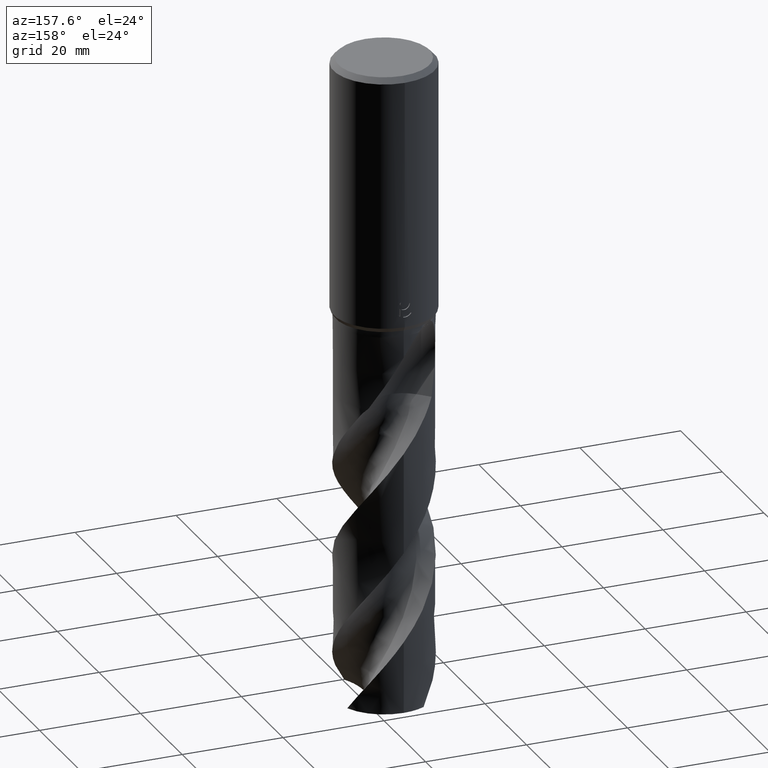
[diagram: clean part render]
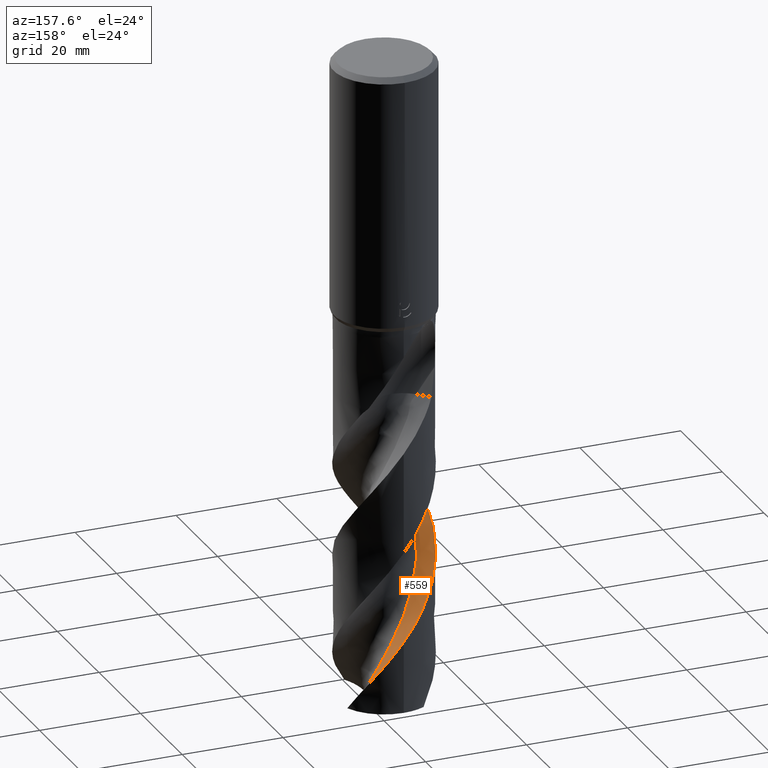
[diagram: same view with one face highlighted and labeled with its STEP entity id]
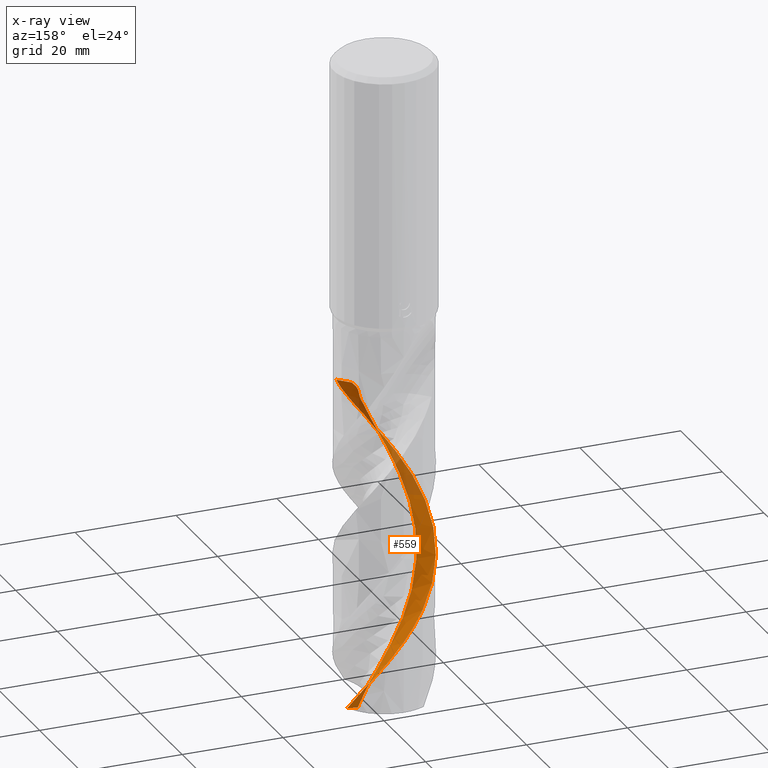
[diagram: x-ray of the same camera — body ghosted, the highlighted face saturated]
A machine part, auxiliary view. The second image highlights one B-rep face of the part: STEP entity #559.
The next image is the same camera in x-ray: the body ghosted, the highlighted face saturated — about 16% of this face is hidden behind the body in this view.
In plain terms, the highlighted face is a freeform B-spline surface patch.
Its self-contained STEP definition (entity closure, byte-faithful):
#319=VERTEX_POINT('',#833);
#355=EDGE_CURVE('',#475,#403,#871,.T.);
#403=VERTEX_POINT('',#924);
#409=EDGE_CURVE('',#537,#403,#930,.T.);
#433=VERTEX_POINT('',#958);
#437=VERTEX_POINT('',#962);
#439=EDGE_CURVE('',#433,#437,#964,.T.);
#475=VERTEX_POINT('',#1002);
#537=VERTEX_POINT('',#1073);
#559=ADVANCED_FACE('',(#1097),#1098,.F.);
#567=EDGE_CURVE('',#537,#319,#1107,.T.);
#569=EDGE_CURVE('',#437,#475,#1109,.T.);
#623=EDGE_CURVE('',#319,#433,#1166,.T.);
#833=CARTESIAN_POINT('',(6.60317748529335,-6.82982492497779,-66.369));
#871=B_SPLINE_CURVE_WITH_KNOTS('',3,(#2471,#2472,#2473,#2474,#2475,#2476),.UNSPECIFIED.,.F.,.F.,(4,2,4),(0.0,4.25885303102004,8.39919898855953),.UNSPECIFIED.);
#924=CARTESIAN_POINT('',(5.80974201715728,1.44728957553705,-128.820801377127));
#930=B_SPLINE_CURVE_WITH_KNOTS('',3,(#3488,#3489,#3490,#3491,#3492,#3493,#3494,#3495,#3496,#3497,#3498,#3499,#3500,#3501,#3502,#3503,#3504,#3505,#3506,#3507,#3508,#3509,#3510,#3511,#3512,#3513,#3514,#3515,#3516,#3517,#3518,#3519,#3520,#3521,#3522,#3523,#3524,#3525,#3526,#3527,#3528,#3529,#3530,#3531,#3532,#3533,#3534,#3535,#3536,#3537,#3538,#3539,#3540,#3541,#3542,#3543,#3544,#3545,#3546,#3547,#3548),.UNSPECIFIED.,.F.,.F.,(4,1,2,2,2,2,2,2,1,2,2,1,2,1,2,1,2,1,2,1,2,1,2,1,2,1,2,1,2,1,2,1,2,2,2,2,4),(0.0,1.50514224946987,3.01028449893974,4.51542674840961,6.02056899787949,7.52571124734936,9.03085349681923,10.5359957462891,12.041137995759,15.0514224946987,18.0617069936385,21.0719914925782,24.0822759915179,27.0925604904577,30.1028449893974,33.1131294883372,36.1234139872769,39.1336984862167,42.1439829851564,45.1542674840962,48.1645519830359,51.1748364819756,54.1851209809154,57.1954054798551,60.2056899787949,63.2159744777346,66.2262589766744,69.2365434756141,72.2468279745538,75.2571124734936,78.2673969724333,81.2776814713731,84.2879659703128,87.2982504692526,90.3085349681923,93.318819467132,96.3291039660718),.UNSPECIFIED.);
#958=CARTESIAN_POINT('',(-4.1338880547068E-012,-9.49993127510532,-75.6259285171652));
#962=CARTESIAN_POINT('',(1.27417946126216E-014,9.49998125251192,-113.380002318758));
#964=B_SPLINE_CURVE_WITH_KNOTS('',3,(#3954,#3955,#3956,#3957,#3958,#3959,#3960,#3961,#3962,#3963,#3964,#3965,#3966,#3967,#3968,#3969,#3970,#3971,#3972,#3973,#3974,#3975,#3976,#3977,#3978,#3979,#3980,#3981,#3982,#3983,#3984,#3985,#3986,#3987,#3988,#3989,#3990,#3991,#3992,#3993,#3994,#3995,#3996,#3997,#3998,#3999,#4000,#4001,#4002,#4003,#4004,#4005,#4006,#4007,#4008,#4009,#4010,#4011,#4012,#4013,#4014,#4015,#4016,#4017,#4018,#4019,#4020,#4021,#4022,#4023,#4024,#4025,#4026,#4027,#4028,#4029,#4030,#4031,#4032,#4033,#4034,#4035,#4036,#4037,#4038,#4039,#4040,#4041,#4042,#4043,#4044,#4045,#4046,#4047),.UNSPECIFIED.,.F.,.F.,(4,2,2,2,2,2,2,2,2,2,2,2,2,2,2,2,2,2,2,2,2,2,2,2,2,2,2,2,2,2,2,2,2,2,2,2,2,2,2,2,2,2,2,2,2,2,4),(0.0,0.251873119474417,1.49003797487971,1.88508295319793,2.13092462434853,2.35716562233721,3.13353898347718,4.18013330538902,4.83918963152517,5.93775065587762,6.81496857982327,8.02790787915014,9.75036210045493,13.2764124544649,14.4454629875948,15.6066051960238,17.9265473335705,19.0963699913995,21.4109945508094,23.7401067032691,26.0705935709527,28.3953475288639,29.5638755078165,30.7172768610607,33.0360554741393,34.205567762644,36.5191793595424,38.8491953685156,41.1763972234209,43.5015908754758,44.669614792135,45.8209936645345,48.1405530675708,49.3096707922411,51.6196713102826,53.9501576620426,56.2743511680703,58.6000247152023,59.6813820773217,60.6859263624276,64.4629977253642,65.888779279663,68.3922279306903,69.333198665928,70.9795006092645,73.4517762786799,75.9230377183362),.UNSPECIFIED.);
#1002=CARTESIAN_POINT('',(8.77829669865339,3.63201143588659,-127.542282774471));
#1073=CARTESIAN_POINT('',(4.47834294508706,-4.70499038491293,-66.369));
#1097=FACE_OUTER_BOUND('',#4417,.T.);
#1098=B_SPLINE_SURFACE_WITH_KNOTS('',3,3,((#4418,#4419,#4420,#4421,#4422,#4423,#4424,#4425,#4426,#4427,#4428,#4429,#4430,#4431,#4432,#4433,#4434,#4435,#4436,#4437,#4438,#4439,#4440,#4441,#4442,#4443,#4444,#4445,#4446,#4447,#4448,#4449,#4450,#4451,#4452,#4453,#4454,#4455,#4456,#4457,#4458,#4459,#4460,#4461,#4462,#4463,#4464,#4465,#4466,#4467,#4468,#4469,#4470,#4471,#4472,#4473,#4474,#4475,#4476,#4477,#4478),(#4479,#4480,#4481,#4482,#4483,#4484,#4485,#4486,#4487,#4488,#4489,#4490,#4491,#4492,#4493,#4494,#4495,#4496,#4497,#4498,#4499,#4500,#4501,#4502,#4503,#4504,#4505,#4506,#4507,#4508,#4509,#4510,#4511,#4512,#4513,#4514,#4515,#4516,#4517,#4518,#4519,#4520,#4521,#4522,#4523,#4524,#4525,#4526,#4527,#4528,#4529,#4530,#4531,#4532,#4533,#4534,#4535,#4536,#4537,#4538,#4539),(#4540,#4541,#4542,#4543,#4544,#4545,#4546,#4547,#4548,#4549,#4550,#4551,#4552,#4553,#4554,#4555,#4556,#4557,#4558,#4559,#4560,#4561,#4562,#4563,#4564,#4565,#4566,#4567,#4568,#4569,#4570,#4571,#4572,#4573,#4574,#4575,#4576,#4577,#4578,#4579,#4580,#4581,#4582,#4583,#4584,#4585,#4586,#4587,#4588,#4589,#4590,#4591,#4592,#4593,#4594,#4595,#4596,#4597,#4598,#4599,#4600),(#4601,#4602,#4603,#4604,#4605,#4606,#4607,#4608,#4609,#4610,#4611,#4612,#4613,#4614,#4615,#4616,#4617,#4618,#4619,#4620,#4621,#4622,#4623,#4624,#4625,#4626,#4627,#4628,#4629,#4630,#4631,#4632,#4633,#4634,#4635,#4636,#4637,#4638,#4639,#4640,#4641,#4642,#4643,#4644,#4645,#4646,#4647,#4648,#4649,#4650,#4651,#4652,#4653,#4654,#4655,#4656,#4657,#4658,#4659,#4660,#4661)),.UNSPECIFIED.,.F.,.F.,.F.,(4,4),(4,1,2,2,2,2,2,2,1,2,2,1,2,1,2,1,2,1,2,1,2,1,2,1,2,1,2,1,2,1,2,1,2,2,2,2,4),(-2.88369317574116E-015,12.66666667),(0.0,1.50514224946987,3.01028449893974,4.51542674840961,6.02056899787949,7.52571124734936,9.03085349681923,10.5359957462891,12.041137995759,15.0514224946987,18.0617069936385,21.0719914925782,24.0822759915179,27.0925604904577,30.1028449893974,33.1131294883372,36.1234139872769,39.1336984862167,42.1439829851564,45.1542674840962,48.1645519830359,51.1748364819756,54.1851209809154,57.1954054798551,60.2056899787949,63.2159744777346,66.2262589766744,69.2365434756141,72.2468279745538,75.2571124734936,78.2673969724333,81.2776814713731,84.2879659703128,87.2982504692526,90.3085349681923,93.318819467132,96.3291039660718),.UNSPECIFIED.);
#1107=LINE('',#4672,#4673);
#1109=B_SPLINE_CURVE_WITH_KNOTS('',3,(#4676,#4677,#4678,#4679,#4680,#4681,#4682,#4683,#4684,#4685,#4686,#4687,#4688,#4689,#4690,#4691,#4692,#4693,#4694,#4695,#4696,#4697,#4698,#4699,#4700,#4701,#4702,#4703,#4704,#4705,#4706,#4707,#4708,#4709,#4710,#4711,#4712,#4713,#4714,#4715,#4716,#4717,#4718,#4719,#4720,#4721,#4722,#4723,#4724,#4725,#4726,#4727,#4728,#4729,#4730,#4731,#4732,#4733,#4734,#4735,#4736,#4737,#4738,#4739,#4740,#4741,#4742,#4743,#4744,#4745,#4746,#4747,#4748,#4749,#4750,#4751,#4752,#4753,#4754,#4755,#4756,#4757,#4758,#4759,#4760,#4761,#4762,#4763,#4764,#4765,#4766,#4767,#4768,#4769),.UNSPECIFIED.,.F.,.F.,(4,2,2,2,2,2,2,2,2,2,2,2,2,2,2,2,2,2,2,2,2,2,2,2,2,2,2,2,2,2,2,2,2,2,2,2,2,2,2,2,2,2,2,2,2,2,4),(0.0,0.251873119474417,1.49003797487971,1.88508295319793,2.13092462434853,2.35716562233721,3.13353898347718,4.18013330538902,4.83918963152517,5.93775065587762,6.81496857982327,8.02790787915014,9.75036210045493,13.2764124544649,14.4454629875948,15.6066051960238,17.9265473335705,19.0963699913995,21.4109945508094,23.7401067032691,26.0705935709527,28.3953475288639,29.5638755078165,30.7172768610607,33.0360554741393,34.205567762644,36.5191793595424,38.8491953685156,41.1763972234209,43.5015908754758,44.669614792135,45.8209936645345,48.1405530675708,49.3096707922411,51.6196713102826,53.9501576620426,56.2743511680703,58.6000247152023,59.6813820773217,60.6859263624276,64.4629977253642,65.888779279663,68.3922279306903,69.333198665928,70.9795006092645,73.4517762786799,75.9230377183362),.UNSPECIFIED.);
#1166=B_SPLINE_CURVE_WITH_KNOTS('',3,(#5030,#5031,#5032,#5033,#5034,#5035,#5036,#5037,#5038,#5039,#5040,#5041,#5042,#5043,#5044,#5045,#5046,#5047,#5048,#5049,#5050,#5051,#5052,#5053,#5054,#5055,#5056,#5057,#5058,#5059,#5060,#5061,#5062,#5063,#5064,#5065,#5066,#5067,#5068,#5069,#5070,#5071,#5072,#5073,#5074,#5075,#5076,#5077,#5078,#5079,#5080,#5081,#5082,#5083,#5084,#5085,#5086,#5087,#5088,#5089,#5090,#5091,#5092,#5093,#5094,#5095,#5096,#5097,#5098,#5099,#5100,#5101,#5102,#5103,#5104,#5105,#5106,#5107,#5108,#5109,#5110,#5111,#5112,#5113,#5114,#5115,#5116,#5117,#5118,#5119,#5120,#5121,#5122,#5123),.UNSPECIFIED.,.F.,.F.,(4,2,2,2,2,2,2,2,2,2,2,2,2,2,2,2,2,2,2,2,2,2,2,2,2,2,2,2,2,2,2,2,2,2,2,2,2,2,2,2,2,2,2,2,2,2,4),(0.0,0.251873119474417,1.49003797487971,1.88508295319793,2.13092462434853,2.35716562233721,3.13353898347718,4.18013330538902,4.83918963152517,5.93775065587762,6.81496857982327,8.02790787915014,9.75036210045493,13.2764124544649,14.4454629875948,15.6066051960238,17.9265473335705,19.0963699913995,21.4109945508094,23.7401067032691,26.0705935709527,28.3953475288639,29.5638755078165,30.7172768610607,33.0360554741393,34.205567762644,36.5191793595424,38.8491953685156,41.1763972234209,43.5015908754758,44.669614792135,45.8209936645345,48.1405530675708,49.3096707922411,51.6196713102826,53.9501576620426,56.2743511680703,58.6000247152023,59.6813820773217,60.6859263624276,64.4629977253642,65.888779279663,68.3922279306903,69.333198665928,70.9795006092645,73.4517762786799,75.9230377183362),.UNSPECIFIED.);
#2471=CARTESIAN_POINT('',(11.5765998462698,6.81779553810075,-126.110049404806));
#2472=CARTESIAN_POINT('',(10.8039131995414,5.71366045002718,-126.556317712131));
#2473=CARTESIAN_POINT('',(9.92067903092733,4.69230082632986,-127.009142719511));
#2474=CARTESIAN_POINT('',(7.98080270049528,2.88890076310662,-127.915052170613));
#2475=CARTESIAN_POINT('',(6.93383319822024,2.10489541934979,-128.365941801069));
#2476=CARTESIAN_POINT('',(5.80974201712284,1.44728957562872,-128.820801377131));
#3488=CARTESIAN_POINT('',(4.47834294508706,-4.70499038491294,-66.369));
#3489=CARTESIAN_POINT('',(4.10124859374168,-4.68114855484236,-66.7050042010984));
#3490=CARTESIAN_POINT('',(3.48398326987125,-4.70393963179096,-67.374863723799));
#3491=CARTESIAN_POINT('',(3.14106399801101,-4.85226148457146,-68.0431642282418));
#3492=CARTESIAN_POINT('',(2.92263971606199,-5.07482759472613,-68.7167645355891));
#3493=CARTESIAN_POINT('',(2.8180123749376,-5.18723501483594,-69.0544199585459));
#3494=CARTESIAN_POINT('',(2.61175601801859,-5.41408162504191,-69.7332494511359));
#3495=CARTESIAN_POINT('',(2.47841625132045,-5.50296919945884,-70.0722916806471));
#3496=CARTESIAN_POINT('',(2.16756926318354,-5.62990795372111,-70.7463214611539));
#3497=CARTESIAN_POINT('',(2.00225290854315,-5.67986901491655,-71.0826349325472));
#3498=CARTESIAN_POINT('',(1.65884399258006,-5.75448229154963,-71.7529823179208));
#3499=CARTESIAN_POINT('',(1.49027309541351,-5.7899627365465,-72.0884849730404));
#3500=CARTESIAN_POINT('',(1.15861432781505,-5.85802327307403,-72.7607671149256));
#3501=CARTESIAN_POINT('',(0.994288343902442,-5.88896538320017,-73.0973146535095));
#3502=CARTESIAN_POINT('',(0.668227835566666,-5.94506654928287,-73.771716415554));
#3503=CARTESIAN_POINT('',(0.171785827243109,-6.00272002712873,-74.7828538753643));
#3504=CARTESIAN_POINT('',(-0.334799575302398,-5.9844555014029,-75.7929612511772));
#3505=CARTESIAN_POINT('',(-1.00186192413668,-5.90725474412651,-77.1388784517394));
#3506=CARTESIAN_POINT('',(-1.33198612706097,-5.8399805266898,-77.8119303215312));
#3507=CARTESIAN_POINT('',(-1.97499111387502,-5.66329663055837,-79.1587677915497));
#3508=CARTESIAN_POINT('',(-2.60451099638644,-5.41687276472888,-80.5058899017373));
#3509=CARTESIAN_POINT('',(-3.18322714974284,-5.07066619334075,-81.8521002179992));
#3510=CARTESIAN_POINT('',(-3.73249628587146,-4.69399020889115,-83.1987163081285));
#3511=CARTESIAN_POINT('',(-4.2460169022568,-4.25529826789114,-84.54575706103));
#3512=CARTESIAN_POINT('',(-4.67817146157823,-3.73757906029777,-85.892010220247));
#3513=CARTESIAN_POINT('',(-5.07202039637853,-3.2001228295157,-87.2386478102458));
#3514=CARTESIAN_POINT('',(-5.41176309487789,-2.61617667554467,-88.5856827548969));
#3515=CARTESIAN_POINT('',(-5.648958146282,-1.98491056482271,-89.9319284973923));
#3516=CARTESIAN_POINT('',(-5.84365638445377,-1.34776864053365,-91.2785829774975));
#3517=CARTESIAN_POINT('',(-5.97189317665219,-0.684521892952545,-92.6256313742078));
#3518=CARTESIAN_POINT('',(-5.98763984473996,-0.0103723409502154,-93.9718746468437));
#3519=CARTESIAN_POINT('',(-5.96132336298668,0.655307656145204,-95.318516227455));
#3520=CARTESIAN_POINT('',(-5.86361762927867,1.32372279424485,-96.6655593537789));
#3521=CARTESIAN_POINT('',(-5.65602105761808,1.96533852595325,-98.011802048606));
#3522=CARTESIAN_POINT('',(-5.41146224801823,2.58507581596444,-99.3584396267693));
#3523=CARTESIAN_POINT('',(-5.09865031281403,3.18383590034309,-100.705479135477));
#3524=CARTESIAN_POINT('',(-4.69099542158007,3.72104935899889,-102.051725248662));
#3525=CARTESIAN_POINT('',(-4.25567136147994,4.22542012019542,-103.398371915021));
#3526=CARTESIAN_POINT('',(-3.76286089111361,4.68748226292924,-104.745416192179));
#3527=CARTESIAN_POINT('',(-3.20087961276401,5.06019537291509,-106.091665040934));
#3528=CARTESIAN_POINT('',(-2.62363296783074,5.39280291782176,-107.438317169992));
#3529=CARTESIAN_POINT('',(-2.00602987139938,5.66648272083516,-108.785360184087));
#3530=CARTESIAN_POINT('',(-1.35256994175408,5.83296285118964,-110.131591637003));
#3531=CARTESIAN_POINT('',(-0.697937836539632,5.95655175254549,-111.478218491541));
#3532=CARTESIAN_POINT('',(-0.0246218219708053,6.01115940341247,-112.825269978172));
#3533=CARTESIAN_POINT('',(0.647264957499726,5.95254345564659,-114.171544933531));
#3534=CARTESIAN_POINT('',(1.30612997215727,5.85291246412108,-115.518213390798));
#3535=CARTESIAN_POINT('',(1.9597769550673,5.68230364520769,-116.865214215956));
#3536=CARTESIAN_POINT('',(2.57467779526967,5.40608587646876,-118.211384645746));
#3537=CARTESIAN_POINT('',(3.1638540866682,5.09582095844164,-119.557991514211));
#3538=CARTESIAN_POINT('',(3.7246557026519,4.71897580011305,-120.905176826813));
#3539=CARTESIAN_POINT('',(4.21324241225079,4.2527410460799,-122.251554594952));
#3540=CARTESIAN_POINT('',(4.66566892879684,3.76208963768577,-123.598142909004));
#3541=CARTESIAN_POINT('',(4.86901066352007,3.49361563362283,-124.271352506575));
#3542=CARTESIAN_POINT('',(5.23043551459396,2.93024916739617,-125.618077603003));
#3543=CARTESIAN_POINT('',(5.38374384757543,2.62838545735763,-126.291892585177));
#3544=CARTESIAN_POINT('',(5.64278501191675,2.00941699111222,-127.638519248779));
#3545=CARTESIAN_POINT('',(5.74713160560467,1.69061686432361,-128.310905326276));
#3546=CARTESIAN_POINT('',(5.91338165236704,1.04888915012452,-129.655919057332));
#3547=CARTESIAN_POINT('',(5.95187293022649,0.708350520641794,-130.329341487549));
#3548=CARTESIAN_POINT('',(5.95035302180734,0.36192422380625,-131.001824465228));
#3954=CARTESIAN_POINT('',(6.60317748529335,-6.82982492497779,-66.369));
#3955=CARTESIAN_POINT('',(6.56732896395903,-6.86448393908082,-66.436546522774));
#3956=CARTESIAN_POINT('',(6.53115245635342,-6.89891447658585,-66.504067563078));
#3957=CARTESIAN_POINT('',(6.3149115299211,-7.10147783387571,-66.903078365389));
#3958=CARTESIAN_POINT('',(6.12978801977891,-7.26225138908425,-67.2251662843483));
#3959=CARTESIAN_POINT('',(5.86478478188207,-7.47392289208394,-67.6554609286801));
#3960=CARTESIAN_POINT('',(5.79982235722404,-7.52445502051112,-67.7588390478024));
#3961=CARTESIAN_POINT('',(5.69263840179053,-7.60559187503814,-67.9264725843445));
#3962=CARTESIAN_POINT('',(5.65119667314177,-7.63643642647113,-67.9905997013739));
#3963=CARTESIAN_POINT('',(5.57092280014327,-7.69516709525039,-68.1136881018543));
#3964=CARTESIAN_POINT('',(5.5322006993833,-7.72305285643811,-68.1725699294469));
#3965=CARTESIAN_POINT('',(5.35943519568297,-7.84549903454466,-68.4335023074185));
#3966=CARTESIAN_POINT('',(5.22357780849434,-7.93666342151522,-68.6347568913061));
#3967=CARTESIAN_POINT('',(4.89238725200132,-8.14639367558284,-69.1219739903466));
#3968=CARTESIAN_POINT('',(4.7004642307511,-8.25854854610104,-69.401312545323));
#3969=CARTESIAN_POINT('',(4.38139138210525,-8.4303954783629,-69.8613224756083));
#3970=CARTESIAN_POINT('',(4.25674872801167,-8.49400948220576,-70.0396320928485));
#3971=CARTESIAN_POINT('',(3.92093419370303,-8.65616358956185,-70.5145064653467));
#3972=CARTESIAN_POINT('',(3.70713196104935,-8.74987848372962,-70.8110692137834));
#3973=CARTESIAN_POINT('',(3.31616233855425,-8.90429592797499,-71.343477523361));
#3974=CARTESIAN_POINT('',(3.1408016110143,-8.96765543348787,-71.5785596485852));
#3975=CARTESIAN_POINT('',(2.71796768364287,-9.1064788490791,-72.1400093546992));
#3976=CARTESIAN_POINT('',(2.46950326296371,-9.17696974893974,-72.4655149234991));
#3977=CARTESIAN_POINT('',(1.86220258410466,-9.32282960169812,-73.2544413810069));
#3978=CARTESIAN_POINT('',(1.50154116498336,-9.38764188352505,-73.7180489701718));
#3979=CARTESIAN_POINT('',(0.394981797080532,-9.52120682516674,-75.1295690590272));
#3980=CARTESIAN_POINT('',(-0.356824426973428,-9.52277614827244,-76.0740024630786));
#3981=CARTESIAN_POINT('',(-1.34820719978957,-9.40706323295377,-77.3357973576078));
#3982=CARTESIAN_POINT('',(-1.59380662861743,-9.36857866404848,-77.6498581064332));
#3983=CARTESIAN_POINT('',(-2.07972523618513,-9.27277800634745,-78.2761645391085));
#3984=CARTESIAN_POINT('',(-2.31982955284709,-9.2156388194545,-78.5881104618288));
#3985=CARTESIAN_POINT('',(-3.03200282022896,-9.0165746045621,-79.5241445965765));
#3986=CARTESIAN_POINT('',(-3.49569369237579,-8.84714662559732,-80.1475239355353));
#3987=CARTESIAN_POINT('',(-4.17037883993012,-8.53923743204956,-81.0857117092812));
#3988=CARTESIAN_POINT('',(-4.39245374559397,-8.42716132855404,-81.4000032530859));
#3989=CARTESIAN_POINT('',(-5.04020717935877,-8.06767281718645,-82.3364985612037));
#3990=CARTESIAN_POINT('',(-5.45111385114966,-7.79589843251718,-82.9574649867071));
#3991=CARTESIAN_POINT('',(-6.22930362330623,-7.18954231603338,-84.2062108835002));
#3992=CARTESIAN_POINT('',(-6.59538308864851,-6.85528955669688,-84.8316866618132));
#3993=CARTESIAN_POINT('',(-7.27249042120494,-6.13231416686873,-86.0842211341981));
#3994=CARTESIAN_POINT('',(-7.58223420582164,-5.74489912783116,-86.7091397145258));
#3995=CARTESIAN_POINT('',(-8.1377029167724,-4.92653626177327,-87.961020938963));
#3996=CARTESIAN_POINT('',(-8.38287588817914,-4.49673531200497,-88.5855422657487));
#3997=CARTESIAN_POINT('',(-8.69942976001206,-3.82500557377009,-89.5246875121231));
#3998=CARTESIAN_POINT('',(-8.79647912253519,-3.59621201265578,-89.8386361038093));
#3999=CARTESIAN_POINT('',(-8.9712983328452,-3.13448875576243,-90.4627657061389));
#4000=CARTESIAN_POINT('',(-9.04919647870367,-2.90193066438135,-90.7725807621672));
#4001=CARTESIAN_POINT('',(-9.25632911188926,-2.19369668308835,-91.7063069344376));
#4002=CARTESIAN_POINT('',(-9.35766391004626,-1.71061077868816,-92.3294860198512));
#4003=CARTESIAN_POINT('',(-9.45303068946396,-0.975269793209317,-93.2674757844495));
#4004=CARTESIAN_POINT('',(-9.47532037539241,-0.727528649373846,-93.5817598452777));
#4005=CARTESIAN_POINT('',(-9.51267928303701,0.0122041841635203,-94.5181385722579));
#4006=CARTESIAN_POINT('',(-9.49927820838909,0.504555485150675,-95.1391222030793));
#4007=CARTESIAN_POINT('',(-9.39609472123268,1.48584570221717,-96.388123838004));
#4008=CARTESIAN_POINT('',(-9.3058910167287,1.97359676838131,-97.0139167213018));
#4009=CARTESIAN_POINT('',(-9.05026968921457,2.93031556297424,-98.266044268255));
#4010=CARTESIAN_POINT('',(-8.88542390177284,3.39751275616411,-98.8902744218214));
#4011=CARTESIAN_POINT('',(-8.48479611656557,4.30135969956399,-100.141667395396));
#4012=CARTESIAN_POINT('',(-8.24957200941492,4.7369092323875,-100.766401149436));
#4013=CARTESIAN_POINT('',(-7.84675166845045,5.36092487007266,-101.705710187293));
#4014=CARTESIAN_POINT('',(-7.70391556159159,5.56423841439905,-102.019582977183));
#4015=CARTESIAN_POINT('',(-7.40474481344827,5.95643247914748,-102.643163292462));
#4016=CARTESIAN_POINT('',(-7.24881321239238,6.14524046039473,-102.952532536493));
#4017=CARTESIAN_POINT('',(-6.75740719425368,6.69551557252032,-103.886133615673));
#4018=CARTESIAN_POINT('',(-6.40082279977045,7.03719469259367,-104.50960516961));
#4019=CARTESIAN_POINT('',(-5.82696920605054,7.50717406885272,-105.447864741232));
#4020=CARTESIAN_POINT('',(-5.62852014054174,7.65709115712674,-105.762096246245));
#4021=CARTESIAN_POINT('',(-5.02103316297714,8.07960962656154,-106.697574726252));
#4022=CARTESIAN_POINT('',(-4.59668522202638,8.32832486419646,-107.317810445428));
#4023=CARTESIAN_POINT('',(-3.70980003626753,8.75969285898945,-108.566195409821));
#4024=CARTESIAN_POINT('',(-3.24797913384517,8.94124356565065,-109.192181840475));
#4025=CARTESIAN_POINT('',(-2.30116492914014,9.23030614247163,-110.443831731749));
#4026=CARTESIAN_POINT('',(-1.81802705194892,9.33747188172765,-111.067430289815));
#4027=CARTESIAN_POINT('',(-0.83946637530835,9.47571855063603,-112.318392358247));
#4028=CARTESIAN_POINT('',(-0.345233044315785,9.5065797490061,-112.943345611922));
#4029=CARTESIAN_POINT('',(0.379223255067798,9.49519503817697,-113.859645236233));
#4030=CARTESIAN_POINT('',(0.608975566000796,9.48323351858148,-114.150306776725));
#4031=CARTESIAN_POINT('',(1.05093319125585,9.44409198646768,-114.711218465786));
#4032=CARTESIAN_POINT('',(1.26301702200371,9.41807245751972,-114.981189993123));
#4033=CARTESIAN_POINT('',(2.26734642350548,9.26033275358307,-116.267489277209));
#4034=CARTESIAN_POINT('',(3.04199820874608,9.03558036823438,-117.280418017207));
#4035=CARTESIAN_POINT('',(4.05754445977954,8.59523831014453,-118.679638745028));
#4036=CARTESIAN_POINT('',(4.32978700719178,8.46136034949678,-119.062672390087));
#4037=CARTESIAN_POINT('',(5.0609415840037,8.05729310584805,-120.119967309998));
#4038=CARTESIAN_POINT('',(5.5044231746928,7.76109801673638,-120.793101536775));
#4039=CARTESIAN_POINT('',(6.07730718881284,7.30453566954457,-121.719821208893));
#4040=CARTESIAN_POINT('',(6.22985784314959,7.17487345916158,-121.972879628076));
#4041=CARTESIAN_POINT('',(6.63779914475541,6.80530525401712,-122.668833055765));
#4042=CARTESIAN_POINT('',(6.88414073868035,6.55599898177118,-123.111167562962));
#4043=CARTESIAN_POINT('',(7.46452414931052,5.89977451662334,-124.21920845152));
#4044=CARTESIAN_POINT('',(7.77954681174378,5.4776779865413,-124.882932302769));
#4045=CARTESIAN_POINT('',(8.33632943933207,4.58603564602007,-126.213228692416));
#4046=CARTESIAN_POINT('',(8.57727900842124,4.11785367436553,-126.877483343065));
#4047=CARTESIAN_POINT('',(8.77829669865342,3.63201143588658,-127.542282774471));
#4417=EDGE_LOOP('',(#6030,#6031,#6032,#6033,#6034,#6035));
#4418=CARTESIAN_POINT('',(4.47834294515778,-4.70499038484222,-66.369));
#4419=CARTESIAN_POINT('',(4.10124859381685,-4.68114855478056,-66.7050042010973));
#4420=CARTESIAN_POINT('',(3.48398326994195,-4.70393963171554,-67.3748637238006));
#4421=CARTESIAN_POINT('',(3.14106399808353,-4.85226148450762,-68.0431642282394));
#4422=CARTESIAN_POINT('',(2.92263971614342,-5.07482759466229,-68.7167645355911));
#4423=CARTESIAN_POINT('',(2.81801237502049,-5.18723501477998,-69.0544199585481));
#4424=CARTESIAN_POINT('',(2.61175601810147,-5.41408162498595,-69.7332494511336));
#4425=CARTESIAN_POINT('',(2.47841625139925,-5.50296919940635,-70.0722916806427));
#4426=CARTESIAN_POINT('',(2.16756926328016,-5.62990795367754,-70.7463214611583));
#4427=CARTESIAN_POINT('',(2.00225290863002,-5.67986901488026,-71.0826349325427));
#4428=CARTESIAN_POINT('',(1.65884399267584,-5.75448229150443,-71.7529823179252));
#4429=CARTESIAN_POINT('',(1.49027309551228,-5.7899627365088,-72.0884849730404));
#4430=CARTESIAN_POINT('',(1.15861432790491,-5.85802327304524,-72.7607671149255));
#4431=CARTESIAN_POINT('',(0.994288343990304,-5.88896538317496,-73.0973146535094));
#4432=CARTESIAN_POINT('',(0.668227835672353,-5.94506654925767,-73.771716415554));
#4433=CARTESIAN_POINT('',(0.171785827338652,-6.0027200271182,-74.7828538753598));
#4434=CARTESIAN_POINT('',(-0.334799575220219,-5.98445550139382,-75.7929612511949));
#4435=CARTESIAN_POINT('',(-1.00186192401886,-5.90725474413525,-77.1388784517215));
#4436=CARTESIAN_POINT('',(-1.3319861269267,-5.83998052669746,-77.811930321549));
#4437=CARTESIAN_POINT('',(-1.97499111381204,-5.66329663058386,-79.1587677915318));
#4438=CARTESIAN_POINT('',(-2.60451099629064,-5.41687276476215,-80.5058899017461));
#4439=CARTESIAN_POINT('',(-3.18322714961955,-5.07066619338,-81.8521002179992));
#4440=CARTESIAN_POINT('',(-3.73249628581946,-4.69399020894823,-83.1987163081284));
#4441=CARTESIAN_POINT('',(-4.24601690215061,-4.25529826795416,-84.5457570610299));
#4442=CARTESIAN_POINT('',(-4.67817146152921,-3.73757906036323,-85.8920102202469));
#4443=CARTESIAN_POINT('',(-5.07202039629385,-3.20012282959899,-87.2386478102457));
#4444=CARTESIAN_POINT('',(-5.41176309483259,-2.61617667563482,-88.5856827549147));
#4445=CARTESIAN_POINT('',(-5.64895814624343,-1.98491056489715,-89.9319284973566));
#4446=CARTESIAN_POINT('',(-5.84365638441519,-1.34776864064374,-91.2785829775331));
#4447=CARTESIAN_POINT('',(-5.97189317663374,-0.68452189303351,-92.62563137419));
#4448=CARTESIAN_POINT('',(-5.98763984472507,-0.0103723410678658,-93.9718746468437));
#4449=CARTESIAN_POINT('',(-5.96132336298962,0.655307656063203,-95.318516227455));
#4450=CARTESIAN_POINT('',(-5.86361762928517,1.32372279413512,-96.6655593537788));
#4451=CARTESIAN_POINT('',(-5.65602105764537,1.96533852585704,-98.0118020486059));
#4452=CARTESIAN_POINT('',(-5.41146224804552,2.58507581586823,-99.3584396267693));
#4453=CARTESIAN_POINT('',(-5.09865031286209,3.18383590025153,-100.705479135441));
#4454=CARTESIAN_POINT('',(-4.69099542162865,3.72104935891707,-102.051725248734));
#4455=CARTESIAN_POINT('',(-4.25567136154635,4.2254201201136,-103.39837191495));
#4456=CARTESIAN_POINT('',(-3.76286089118052,4.68748226284382,-104.745416192214));
#4457=CARTESIAN_POINT('',(-3.20087961284528,5.06019537288355,-106.091665040934));
#4458=CARTESIAN_POINT('',(-2.62363296791201,5.39280291773675,-107.438317169992));
#4459=CARTESIAN_POINT('',(-2.00602987149943,5.66648272080405,-108.785360184087));
#4460=CARTESIAN_POINT('',(-1.3525699418322,5.83296285116143,-110.131591637003));
#4461=CARTESIAN_POINT('',(-0.697937836653399,5.95655175251729,-111.478218491541));
#4462=CARTESIAN_POINT('',(-0.0246218220536914,6.0111594033961,-112.825269978172));
#4463=CARTESIAN_POINT('',(0.647264957382023,5.95254345566053,-114.171544933531));
#4464=CARTESIAN_POINT('',(1.30612997207522,5.85291246411719,-115.518213390798));
#4465=CARTESIAN_POINT('',(1.9597769549772,5.68230364523411,-116.865214215955));
#4466=CARTESIAN_POINT('',(2.57467779514139,5.40608587650645,-118.211384645746));
#4467=CARTESIAN_POINT('',(3.16385408661122,5.09582095847933,-119.557991514211));
#4468=CARTESIAN_POINT('',(3.72465570254788,4.71897580017092,-120.905176826813));
#4469=CARTESIAN_POINT('',(4.21324241217576,4.25274104613711,-122.251554594952));
#4470=CARTESIAN_POINT('',(4.6656689287218,3.76208963776079,-123.598142909004));
#4471=CARTESIAN_POINT('',(4.86901066343936,3.49361563368277,-124.271352506503));
#4472=CARTESIAN_POINT('',(5.2304355145489,2.93024916749176,-125.618077603074));
#4473=CARTESIAN_POINT('',(5.3837438475175,2.62838545742697,-126.291892585177));
#4474=CARTESIAN_POINT('',(5.64278501187665,2.00941699121721,-127.638519248779));
#4475=CARTESIAN_POINT('',(5.747131605571,1.69061686441778,-128.310905326276));
#4476=CARTESIAN_POINT('',(5.91338165233337,1.04888915021869,-129.655919057332));
#4477=CARTESIAN_POINT('',(5.9518729301909,0.708350520722385,-130.329341487549));
#4478=CARTESIAN_POINT('',(5.95035302178957,0.361924223904666,-131.001824465228));
#4479=CARTESIAN_POINT('',(7.46390491091311,-7.69055235061631,-66.3690000000656));
#4480=CARTESIAN_POINT('',(7.08860567133127,-7.66491559694269,-66.7049552358725));
#4481=CARTESIAN_POINT('',(6.42782481965024,-7.73236900208643,-67.3721626932194));
#4482=CARTESIAN_POINT('',(5.93965111511087,-8.0165869605962,-68.0360211468292));
#4483=CARTESIAN_POINT('',(5.51507853930814,-8.41013892394363,-68.709669619846));
#4484=CARTESIAN_POINT('',(5.29943349639861,-8.6063349547383,-69.0481744202053));
#4485=CARTESIAN_POINT('',(4.85546227287914,-8.99367783939346,-69.7314061793183));
#4486=CARTESIAN_POINT('',(4.61019062507241,-9.14944009674304,-70.0723147600669));
#4487=CARTESIAN_POINT('',(4.0914045587156,-9.39023608621055,-70.7468920487283));
#4488=CARTESIAN_POINT('',(3.8235393638024,-9.49068729076102,-71.0829352501033));
#4489=CARTESIAN_POINT('',(3.27791330010175,-9.65551147139177,-71.7509334304314));
#4490=CARTESIAN_POINT('',(3.0039311590325,-9.73325293806486,-72.0855190616107));
#4491=CARTESIAN_POINT('',(2.45276339362834,-9.87870290434581,-72.7569774953645));
#4492=CARTESIAN_POINT('',(2.17518506100646,-9.94447467653955,-73.0934357973907));
#4493=CARTESIAN_POINT('',(1.61586199975192,-10.0613349476225,-73.7686921236957));
#4494=CARTESIAN_POINT('',(0.768268902718699,-10.1944405893079,-74.780742433007));
#4495=CARTESIAN_POINT('',(-0.0913505675867288,-10.2062597533679,-75.7909478512527));
#4496=CARTESIAN_POINT('',(-1.23057189989338,-10.1298808227694,-77.1362915793297));
#4497=CARTESIAN_POINT('',(-1.79645872686738,-10.0433463088562,-77.8091291698865));
#4498=CARTESIAN_POINT('',(-2.90976380362488,-9.78763911332865,-79.1561201679268));
#4499=CARTESIAN_POINT('',(-3.99639753841525,-9.423750418478,-80.5036205540653));
#4500=CARTESIAN_POINT('',(-5.00708956522751,-8.88613175083757,-81.8494875618682));
#4501=CARTESIAN_POINT('',(-5.97517421088296,-8.27932623946357,-83.196082579519));
#4502=CARTESIAN_POINT('',(-6.88206860049608,-7.5785382902584,-84.5434364313074));
#4503=CARTESIAN_POINT('',(-7.65884156114295,-6.7375417554898,-85.8893817313388));
#4504=CARTESIAN_POINT('',(-8.37190693590694,-5.84491191058286,-87.2360133006295));
#4505=CARTESIAN_POINT('',(-8.99641567434074,-4.88396782754582,-88.5833578762478));
#4506=CARTESIAN_POINT('',(-9.45232374017063,-3.83385686860966,-89.9292904025075));
#4507=CARTESIAN_POINT('',(-9.83125790495739,-2.75603673849518,-91.2759509033921));
#4508=CARTESIAN_POINT('',(-10.1039837114259,-1.64289226448804,-92.6233216192334));
#4509=CARTESIAN_POINT('',(-10.1880369417908,-0.501153585761581,-93.969246240878));
#4510=CARTESIAN_POINT('',(-10.1902706580189,0.6413439177949,-95.3158878214893));
#4511=CARTESIAN_POINT('',(-10.0805459363491,1.78215520130159,-96.6632451936704));
#4512=CARTESIAN_POINT('',(-9.78318264620516,2.88768507501911,-98.0091720223123));
#4513=CARTESIAN_POINT('',(-9.40829808319575,3.96691678898196,-99.3558035797675));
#4514=CARTESIAN_POINT('',(-8.92832438842155,5.00762767287834,-100.703158033112));
#4515=CARTESIAN_POINT('',(-8.28291005623529,5.9531644945744,-102.049086424418));
#4516=CARTESIAN_POINT('',(-7.57299203447643,6.84831082227715,-103.395739111342));
#4517=CARTESIAN_POINT('',(-6.77659674424281,7.67245011839748,-104.743096619236));
#4518=CARTESIAN_POINT('',(-5.85544597390533,8.35222738647832,-106.089035127274));
#4519=CARTESIAN_POINT('',(-4.8900284713216,8.96318656747117,-107.43569327704));
#4520=CARTESIAN_POINT('',(-3.86636059914971,9.47854526494091,-108.783055091042));
#4521=CARTESIAN_POINT('',(-2.77252884120252,9.81641796661246,-110.12895709539));
#4522=CARTESIAN_POINT('',(-1.65961698993777,10.074726985726,-111.475571908511));
#4523=CARTESIAN_POINT('',(-0.523252626153724,10.2235197237447,-112.822939103928));
#4524=CARTESIAN_POINT('',(0.620791742304702,10.1814274750646,-114.16892354438));
#4525=CARTESIAN_POINT('',(1.75656156369123,10.0578220237383,-115.515622105187));
#4526=CARTESIAN_POINT('',(2.8783880296521,9.82342256027844,-116.862922710359));
#4527=CARTESIAN_POINT('',(3.94478489630686,9.40697222920171,-118.208710931169));
#4528=CARTESIAN_POINT('',(4.97671051723528,8.91653009442931,-119.55526361326));
#4529=CARTESIAN_POINT('',(5.95835265951491,8.32492562422007,-120.902813716065));
#4530=CARTESIAN_POINT('',(6.82591828282215,7.57806843206799,-122.248993174345));
#4531=CARTESIAN_POINT('',(7.63570393056292,6.77253022542799,-123.595653736895));
#4532=CARTESIAN_POINT('',(8.00299790901715,6.33290877186936,-124.268880315585));
#4533=CARTESIAN_POINT('',(8.662800024103,5.40053611460162,-125.615454894453));
#4534=CARTESIAN_POINT('',(8.94826449760311,4.90371709094487,-126.289342543175));
#4535=CARTESIAN_POINT('',(9.43882597248305,3.87301647839727,-127.636173910853));
#4536=CARTESIAN_POINT('',(9.64201617241948,3.33824513605797,-128.30836392197));
#4537=CARTESIAN_POINT('',(9.96993051100871,2.2443787980679,-129.65307661762));
#4538=CARTESIAN_POINT('',(10.0669916236733,1.6797132988093,-130.32702265057));
#4539=CARTESIAN_POINT('',(10.1054262633209,1.11193792527185,-130.999312965589));
#4540=CARTESIAN_POINT('',(10.4494668767891,-10.6761143164548,-66.3689999999344));
#4541=CARTESIAN_POINT('',(10.0759624338155,-10.6486822011077,-66.704906190145));
#4542=CARTESIAN_POINT('',(9.37166656894549,-10.7607983709947,-67.3694616765414));
#4543=CARTESIAN_POINT('',(8.73823814870836,-11.180912877805,-68.0288781169285));
#4544=CARTESIAN_POINT('',(8.10751744608582,-11.7454498125825,-68.7025746520314));
#4545=CARTESIAN_POINT('',(7.78085480630827,-12.0254356737576,-69.0419291873268));
#4546=CARTESIAN_POINT('',(7.09916833929649,-12.5732732750434,-69.7295626015907));
#4547=CARTESIAN_POINT('',(6.74196510065838,-12.7959112566761,-70.072337834668));
#4548=CARTESIAN_POINT('',(6.01523975272409,-13.1505639565602,-70.7474626406366));
#4549=CARTESIAN_POINT('',(5.64482574359493,-13.301506416198,-71.0832357220696));
#4550=CARTESIAN_POINT('',(4.8969826828925,-13.5565398019362,-71.7488843881155));
#4551=CARTESIAN_POINT('',(4.51758888642886,-13.6765428479804,-72.0825527713406));
#4552=CARTESIAN_POINT('',(3.74691279575388,-13.8993828275574,-72.7531882542529));
#4553=CARTESIAN_POINT('',(3.35608190202438,-13.9999848197494,-73.0895573147425));
#4554=CARTESIAN_POINT('',(2.56349604009889,-14.1776024969091,-73.7656674579277));
#4555=CARTESIAN_POINT('',(1.36475240561199,-14.3861622476629,-74.7786313264047));
#4556=CARTESIAN_POINT('',(0.1520972254393,-14.4280630207072,-75.7889346009411));
#4557=CARTESIAN_POINT('',(-1.45928066118162,-14.3525078865319,-77.1337045568842));
#4558=CARTESIAN_POINT('',(-2.26093028989542,-14.2467088188044,-77.8063277670862));
#4559=CARTESIAN_POINT('',(-3.84453753029566,-13.911984867833,-79.1534727949146));
#4560=CARTESIAN_POINT('',(-5.38828410201043,-13.4306266487899,-80.5013497280011));
#4561=CARTESIAN_POINT('',(-6.8309509012076,-12.7015968836173,-81.8468776111665));
#4562=CARTESIAN_POINT('',(-8.2178532156001,-11.8646626949334,-83.1934461452195));
#4563=CARTESIAN_POINT('',(-9.51811943421907,-10.901777895498,-84.5411165078531));
#4564=CARTESIAN_POINT('',(-10.63951231067,-9.73750486059551,-85.8867545346405));
#4565=CARTESIAN_POINT('',(-11.6717928257422,-8.48970058176821,-87.2333774985251));
#4566=CARTESIAN_POINT('',(-12.5810683664285,-7.15175975261641,-88.5810347418434));
#4567=CARTESIAN_POINT('',(-13.2556897594199,-5.68280203611614,-89.9266501109296));
#4568=CARTESIAN_POINT('',(-13.818859000479,-4.16430597259482,-91.2733210255004));
#4569=CARTESIAN_POINT('',(-14.2360753061673,-2.6012611003941,-92.6210102210491));
#4570=CARTESIAN_POINT('',(-14.3884323441329,-0.991936765123947,-93.9666189236318));
#4571=CARTESIAN_POINT('',(-14.419219647824,0.62738211388764,-95.313258326252));
#4572=CARTESIAN_POINT('',(-14.2974740594784,2.24058631232291,-96.6609324650759));
#4573=CARTESIAN_POINT('',(-13.9103429075454,3.81003228133523,-98.0065402207246));
#4574=CARTESIAN_POINT('',(-13.4051352461121,5.34875710500209,-99.3531693080575));
#4575=CARTESIAN_POINT('',(-12.757997674835,6.8314196975966,-100.700834632826));
#4576=CARTESIAN_POINT('',(-11.8748249417167,8.18527978323956,-102.046450417956));
#4577=CARTESIAN_POINT('',(-10.8903124569731,9.47120137160492,-103.393103489429));
#4578=CARTESIAN_POINT('',(-9.79033223429944,10.6574178620852,-104.740777878372));
#4579=CARTESIAN_POINT('',(-8.51001331154398,11.6442597769917,-106.086406367048));
#4580=CARTESIAN_POINT('',(-7.15642299858566,12.5335698405198,-107.433068230768));
#4581=CARTESIAN_POINT('',(-5.72669239709597,13.2906073140824,-108.78074782537));
#4582=CARTESIAN_POINT('',(-4.19248657651925,13.7998744488365,-110.126328052549));
#4583=CARTESIAN_POINT('',(-2.62129730713215,14.1929008526454,-111.472919826749));
#4584=CARTESIAN_POINT('',(-1.02188286629888,14.4358811635278,-112.820609882343));
#4585=CARTESIAN_POINT('',(0.594318563045705,14.4103106222279,-114.166304346891));
#4586=CARTESIAN_POINT('',(2.20699311945516,14.2627324559963,-115.513028627941));
#4587=CARTESIAN_POINT('',(3.79700036479649,13.9645404090678,-116.860628985135));
#4588=CARTESIAN_POINT('',(5.31488951147504,13.407859841891,-118.206043846777));
#4589=CARTESIAN_POINT('',(6.78956943379948,12.7372379709245,-119.552529081838));
#4590=CARTESIAN_POINT('',(8.19204844354681,11.9308761659881,-120.900451615166));
#4591=CARTESIAN_POINT('',(9.43859401380877,10.9033956428044,-122.246436363288));
#4592=CARTESIAN_POINT('',(10.6057390723775,9.7829709887922,-123.593159954951));
#4593=CARTESIAN_POINT('',(11.1369836319682,9.17220270892417,-124.266406107995));
#4594=CARTESIAN_POINT('',(12.0951660563621,7.87082226289786,-125.612834202004));
#4595=CARTESIAN_POINT('',(12.5127860180378,7.1790466734702,-126.286789083913));
#4596=CARTESIAN_POINT('',(13.2348660631068,5.73661801643206,-127.633831989583));
#4597=CARTESIAN_POINT('',(13.5369020317581,4.98587112356283,-128.305827600582));
#4598=CARTESIAN_POINT('',(14.0264780776695,3.43987072999059,-129.650229094907));
#4599=CARTESIAN_POINT('',(14.1821088504703,2.65107431460167,-130.324701957756));
#4600=CARTESIAN_POINT('',(14.2604995051314,1.86195162679239,-130.996801465191));
#4601=CARTESIAN_POINT('',(13.4350288425444,-13.6616762822289,-66.369));
#4602=CARTESIAN_POINT('',(13.063319699477,-13.6324492432698,-66.7048574601041));
#4603=CARTESIAN_POINT('',(12.3155080245802,-13.7892277413656,-67.3667604342946));
#4604=CARTESIAN_POINT('',(11.5368252657357,-14.3452383538936,-68.0217352236654));
#4605=CARTESIAN_POINT('',(10.6999562692505,-15.0807611418638,-68.6954795481391));
#4606=CARTESIAN_POINT('',(10.2622759276864,-15.444535613716,-69.035683648984));
#4607=CARTESIAN_POINT('',(9.34287459407416,-16.1528694894509,-69.7277193297754));
#4608=CARTESIAN_POINT('',(8.87373928618442,-16.4423827184542,-70.0723609140923));
#4609=CARTESIAN_POINT('',(7.93907523630665,-16.9108915246518,-70.7480332282066));
#4610=CARTESIAN_POINT('',(7.46611201062018,-17.1123245039316,-71.083535851483));
#4611=CARTESIAN_POINT('',(6.51605217846554,-17.4575691699706,-71.7468356887688));
#4612=CARTESIAN_POINT('',(6.03124657365482,-17.6198334258307,-72.0795864836167));
#4613=CARTESIAN_POINT('',(5.04106223777157,-17.9200620825637,-72.7493990109862));
#4614=CARTESIAN_POINT('',(4.53697824274628,-18.0554939249669,-73.0856784586238));
#4615=CARTESIAN_POINT('',(3.51113058047272,-18.2938710834211,-73.7626431660694));
#4616=CARTESIAN_POINT('',(1.96123510469778,-18.5778826217055,-74.7765195077577));
#4617=CARTESIAN_POINT('',(0.395546233072791,-18.6498672726814,-75.7869227061758));
#4618=CARTESIAN_POINT('',(-1.68799063705614,-18.5751339651661,-77.1311161793153));
#4619=CARTESIAN_POINT('',(-2.72540213724758,-18.4500768587287,-77.8035273680123));
#4620=CARTESIAN_POINT('',(-4.77931097269702,-18.0363250928123,-79.1508244187211));
#4621=CARTESIAN_POINT('',(-6.78017026784077,-17.4375050550943,-80.4990815092031));
#4622=CARTESIAN_POINT('',(-8.65481331681556,-16.5170631936634,-81.8442634498585));
#4623=CARTESIAN_POINT('',(-10.4605311406636,-15.4499979728602,-83.1908139217872));
#4624=CARTESIAN_POINT('',(-12.1541711325645,-14.2250186703907,-84.538796630719));
#4625=CARTESIAN_POINT('',(-13.6201824102837,-12.7374668031336,-85.8841230353784));
#4626=CARTESIAN_POINT('',(-14.9716793653553,-11.1344904153406,-87.230745999263));
#4627=CARTESIAN_POINT('',(-16.1657203814953,-9.4195509045274,-88.578709110588));
#4628=CARTESIAN_POINT('',(-17.0590564822299,-7.53174758724014,-89.9240105109035));
#4629=CARTESIAN_POINT('',(-17.8064593921384,-5.57257482303477,-91.2706904565365));
#4630=CARTESIAN_POINT('',(-18.3681656528123,-3.55963109555437,-92.6186989609154));
#4631=CARTESIAN_POINT('',(-18.5888309463757,-1.48271800981766,-93.9639920228432));
#4632=CARTESIAN_POINT('',(-18.6481654376762,0.613418375619337,-95.3106284151093));
#4633=CARTESIAN_POINT('',(-18.514401990248,2.69901853134225,-96.658619057556));
#4634=CARTESIAN_POINT('',(-18.0375067538707,4.73237920679157,-98.0039101944309));
#4635=CARTESIAN_POINT('',(-17.4019688234968,6.73059770182156,-99.3505332610558));
#4636=CARTESIAN_POINT('',(-16.5876736318657,8.65521165837054,-100.69851202532));
#4637=CARTESIAN_POINT('',(-15.4667380711463,10.4173949188969,-102.043814603994));
#4638=CARTESIAN_POINT('',(-14.2076346350802,12.0940920737685,-103.390467675467));
#4639=CARTESIAN_POINT('',(-12.8040675229203,13.642385905786,-104.738461315748));
#4640=CARTESIAN_POINT('',(-11.1645792963098,14.9362914142922,-106.083773443034));
#4641=CARTESIAN_POINT('',(-9.4228188782895,16.1039538665484,-107.43044734817));
#4642=CARTESIAN_POINT('',(-7.58702293659912,17.102669481925,-108.778441227148));
#4643=CARTESIAN_POINT('',(-5.61244547588957,17.7833299405818,-110.123693510935));
#4644=CARTESIAN_POINT('',(-3.58297646041652,18.3110757095598,-111.470273243719));
#4645=CARTESIAN_POINT('',(-1.52051329410465,18.648240919435,-112.818279008099));
#4646=CARTESIAN_POINT('',(0.567844595379868,18.639196146809,-114.16368295774));
#4647=CARTESIAN_POINT('',(2.65742546365968,18.4676405104403,-115.51043734233));
#4648=CARTESIAN_POINT('',(4.71561200391278,18.1056604529949,-116.858335974361));
#4649=CARTESIAN_POINT('',(6.68499473116922,17.4087454419978,-118.203373142554));
#4650=CARTESIAN_POINT('',(8.60242774589484,16.557947859463,-119.549798170534));
#4651=CARTESIAN_POINT('',(10.4257444597782,15.5368261781844,-120.898090009595));
#4652=CARTESIAN_POINT('',(12.0512698844552,14.2287218998525,-122.243874942681));
#4653=CARTESIAN_POINT('',(13.5757740742187,12.7934127053422,-123.590670782842));
#4654=CARTESIAN_POINT('',(14.2709716301345,12.0114943419337,-124.263933917077));
#4655=CARTESIAN_POINT('',(15.5275298133277,10.3411107151848,-125.610211493383));
#4656=CARTESIAN_POINT('',(16.0773066681234,9.45437830698811,-126.284236031556));
#4657=CARTESIAN_POINT('',(17.0309070237132,7.60021750361213,-127.631489662011));
#4658=CARTESIAN_POINT('',(17.4317847171353,6.63349939520301,-128.303283185922));
#4659=CARTESIAN_POINT('',(18.0830288178161,4.63536037783981,-129.647389665549));
#4660=CARTESIAN_POINT('',(18.2972271676585,3.6224378452771,-130.322383120777));
#4661=CARTESIAN_POINT('',(18.4155727466627,2.61196532815956,-130.994289965552));
#4672=CARTESIAN_POINT('',(4.47834294515778,-4.70499038484222,-66.369));
#4673=VECTOR('',#6046,0.999999999999999);
#4676=CARTESIAN_POINT('',(6.60317748529335,-6.82982492497779,-66.369));
#4677=CARTESIAN_POINT('',(6.56732896395903,-6.86448393908082,-66.436546522774));
#4678=CARTESIAN_POINT('',(6.53115245635342,-6.89891447658585,-66.504067563078));
#4679=CARTESIAN_POINT('',(6.3149115299211,-7.10147783387571,-66.903078365389));
#4680=CARTESIAN_POINT('',(6.12978801977891,-7.26225138908425,-67.2251662843483));
#4681=CARTESIAN_POINT('',(5.86478478188207,-7.47392289208394,-67.6554609286801));
#4682=CARTESIAN_POINT('',(5.79982235722404,-7.52445502051112,-67.7588390478024));
#4683=CARTESIAN_POINT('',(5.69263840179053,-7.60559187503814,-67.9264725843445));
#4684=CARTESIAN_POINT('',(5.65119667314177,-7.63643642647113,-67.9905997013739));
#4685=CARTESIAN_POINT('',(5.57092280014327,-7.69516709525039,-68.1136881018543));
#4686=CARTESIAN_POINT('',(5.5322006993833,-7.72305285643811,-68.1725699294469));
#4687=CARTESIAN_POINT('',(5.35943519568297,-7.84549903454466,-68.4335023074185));
#4688=CARTESIAN_POINT('',(5.22357780849434,-7.93666342151522,-68.6347568913061));
#4689=CARTESIAN_POINT('',(4.89238725200132,-8.14639367558284,-69.1219739903466));
#4690=CARTESIAN_POINT('',(4.7004642307511,-8.25854854610104,-69.401312545323));
#4691=CARTESIAN_POINT('',(4.38139138210525,-8.4303954783629,-69.8613224756083));
#4692=CARTESIAN_POINT('',(4.25674872801167,-8.49400948220576,-70.0396320928485));
#4693=CARTESIAN_POINT('',(3.92093419370303,-8.65616358956185,-70.5145064653467));
#4694=CARTESIAN_POINT('',(3.70713196104935,-8.74987848372962,-70.8110692137834));
#4695=CARTESIAN_POINT('',(3.31616233855425,-8.90429592797499,-71.343477523361));
#4696=CARTESIAN_POINT('',(3.1408016110143,-8.96765543348787,-71.5785596485852));
#4697=CARTESIAN_POINT('',(2.71796768364287,-9.1064788490791,-72.1400093546992));
#4698=CARTESIAN_POINT('',(2.46950326296371,-9.17696974893974,-72.4655149234991));
#4699=CARTESIAN_POINT('',(1.86220258410466,-9.32282960169812,-73.2544413810069));
#4700=CARTESIAN_POINT('',(1.50154116498336,-9.38764188352505,-73.7180489701718));
#4701=CARTESIAN_POINT('',(0.394981797080532,-9.52120682516674,-75.1295690590272));
#4702=CARTESIAN_POINT('',(-0.356824426973428,-9.52277614827244,-76.0740024630786));
#4703=CARTESIAN_POINT('',(-1.34820719978957,-9.40706323295377,-77.3357973576078));
#4704=CARTESIAN_POINT('',(-1.59380662861743,-9.36857866404848,-77.6498581064332));
#4705=CARTESIAN_POINT('',(-2.07972523618513,-9.27277800634745,-78.2761645391085));
#4706=CARTESIAN_POINT('',(-2.31982955284709,-9.2156388194545,-78.5881104618288));
#4707=CARTESIAN_POINT('',(-3.03200282022896,-9.0165746045621,-79.5241445965765));
#4708=CARTESIAN_POINT('',(-3.49569369237579,-8.84714662559732,-80.1475239355353));
#4709=CARTESIAN_POINT('',(-4.17037883993012,-8.53923743204956,-81.0857117092812));
#4710=CARTESIAN_POINT('',(-4.39245374559397,-8.42716132855404,-81.4000032530859));
#4711=CARTESIAN_POINT('',(-5.04020717935877,-8.06767281718645,-82.3364985612037));
#4712=CARTESIAN_POINT('',(-5.45111385114966,-7.79589843251718,-82.9574649867071));
#4713=CARTESIAN_POINT('',(-6.22930362330623,-7.18954231603338,-84.2062108835002));
#4714=CARTESIAN_POINT('',(-6.59538308864851,-6.85528955669688,-84.8316866618132));
#4715=CARTESIAN_POINT('',(-7.27249042120494,-6.13231416686873,-86.0842211341981));
#4716=CARTESIAN_POINT('',(-7.58223420582164,-5.74489912783116,-86.7091397145258));
#4717=CARTESIAN_POINT('',(-8.1377029167724,-4.92653626177327,-87.961020938963));
#4718=CARTESIAN_POINT('',(-8.38287588817914,-4.49673531200497,-88.5855422657487));
#4719=CARTESIAN_POINT('',(-8.69942976001206,-3.82500557377009,-89.5246875121231));
#4720=CARTESIAN_POINT('',(-8.79647912253519,-3.59621201265578,-89.8386361038093));
#4721=CARTESIAN_POINT('',(-8.9712983328452,-3.13448875576243,-90.4627657061389));
#4722=CARTESIAN_POINT('',(-9.04919647870367,-2.90193066438135,-90.7725807621672));
#4723=CARTESIAN_POINT('',(-9.25632911188926,-2.19369668308835,-91.7063069344376));
#4724=CARTESIAN_POINT('',(-9.35766391004626,-1.71061077868816,-92.3294860198512));
#4725=CARTESIAN_POINT('',(-9.45303068946396,-0.975269793209317,-93.2674757844495));
#4726=CARTESIAN_POINT('',(-9.47532037539241,-0.727528649373846,-93.5817598452777));
#4727=CARTESIAN_POINT('',(-9.51267928303701,0.0122041841635203,-94.5181385722579));
#4728=CARTESIAN_POINT('',(-9.49927820838909,0.504555485150675,-95.1391222030793));
#4729=CARTESIAN_POINT('',(-9.39609472123268,1.48584570221717,-96.388123838004));
#4730=CARTESIAN_POINT('',(-9.3058910167287,1.97359676838131,-97.0139167213018));
#4731=CARTESIAN_POINT('',(-9.05026968921457,2.93031556297424,-98.266044268255));
#4732=CARTESIAN_POINT('',(-8.88542390177284,3.39751275616411,-98.8902744218214));
#4733=CARTESIAN_POINT('',(-8.48479611656557,4.30135969956399,-100.141667395396));
#4734=CARTESIAN_POINT('',(-8.24957200941492,4.7369092323875,-100.766401149436));
#4735=CARTESIAN_POINT('',(-7.84675166845045,5.36092487007266,-101.705710187293));
#4736=CARTESIAN_POINT('',(-7.70391556159159,5.56423841439905,-102.019582977183));
#4737=CARTESIAN_POINT('',(-7.40474481344827,5.95643247914748,-102.643163292462));
#4738=CARTESIAN_POINT('',(-7.24881321239238,6.14524046039473,-102.952532536493));
#4739=CARTESIAN_POINT('',(-6.75740719425368,6.69551557252032,-103.886133615673));
#4740=CARTESIAN_POINT('',(-6.40082279977045,7.03719469259367,-104.50960516961));
#4741=CARTESIAN_POINT('',(-5.82696920605054,7.50717406885272,-105.447864741232));
#4742=CARTESIAN_POINT('',(-5.62852014054174,7.65709115712674,-105.762096246245));
#4743=CARTESIAN_POINT('',(-5.02103316297714,8.07960962656154,-106.697574726252));
#4744=CARTESIAN_POINT('',(-4.59668522202638,8.32832486419646,-107.317810445428));
#4745=CARTESIAN_POINT('',(-3.70980003626753,8.75969285898945,-108.566195409821));
#4746=CARTESIAN_POINT('',(-3.24797913384517,8.94124356565065,-109.192181840475));
#4747=CARTESIAN_POINT('',(-2.30116492914014,9.23030614247163,-110.443831731749));
#4748=CARTESIAN_POINT('',(-1.81802705194892,9.33747188172765,-111.067430289815));
#4749=CARTESIAN_POINT('',(-0.83946637530835,9.47571855063603,-112.318392358247));
#4750=CARTESIAN_POINT('',(-0.345233044315785,9.5065797490061,-112.943345611922));
#4751=CARTESIAN_POINT('',(0.379223255067798,9.49519503817697,-113.859645236233));
#4752=CARTESIAN_POINT('',(0.608975566000796,9.48323351858148,-114.150306776725));
#4753=CARTESIAN_POINT('',(1.05093319125585,9.44409198646768,-114.711218465786));
#4754=CARTESIAN_POINT('',(1.26301702200371,9.41807245751972,-114.981189993123));
#4755=CARTESIAN_POINT('',(2.26734642350548,9.26033275358307,-116.267489277209));
#4756=CARTESIAN_POINT('',(3.04199820874608,9.03558036823438,-117.280418017207));
#4757=CARTESIAN_POINT('',(4.05754445977954,8.59523831014453,-118.679638745028));
#4758=CARTESIAN_POINT('',(4.32978700719178,8.46136034949678,-119.062672390087));
#4759=CARTESIAN_POINT('',(5.0609415840037,8.05729310584805,-120.119967309998));
#4760=CARTESIAN_POINT('',(5.5044231746928,7.76109801673638,-120.793101536775));
#4761=CARTESIAN_POINT('',(6.07730718881284,7.30453566954457,-121.719821208893));
#4762=CARTESIAN_POINT('',(6.22985784314959,7.17487345916158,-121.972879628076));
#4763=CARTESIAN_POINT('',(6.63779914475541,6.80530525401712,-122.668833055765));
#4764=CARTESIAN_POINT('',(6.88414073868035,6.55599898177118,-123.111167562962));
#4765=CARTESIAN_POINT('',(7.46452414931052,5.89977451662334,-124.21920845152));
#4766=CARTESIAN_POINT('',(7.77954681174378,5.4776779865413,-124.882932302769));
#4767=CARTESIAN_POINT('',(8.33632943933207,4.58603564602007,-126.213228692416));
#4768=CARTESIAN_POINT('',(8.57727900842124,4.11785367436553,-126.877483343065));
#4769=CARTESIAN_POINT('',(8.77829669865342,3.63201143588658,-127.542282774471));
#5030=CARTESIAN_POINT('',(6.60317748529335,-6.82982492497779,-66.369));
#5031=CARTESIAN_POINT('',(6.56732896395903,-6.86448393908082,-66.436546522774));
#5032=CARTESIAN_POINT('',(6.53115245635342,-6.89891447658585,-66.504067563078));
#5033=CARTESIAN_POINT('',(6.3149115299211,-7.10147783387571,-66.903078365389));
#5034=CARTESIAN_POINT('',(6.12978801977891,-7.26225138908425,-67.2251662843483));
#5035=CARTESIAN_POINT('',(5.86478478188207,-7.47392289208394,-67.6554609286801));
#5036=CARTESIAN_POINT('',(5.79982235722404,-7.52445502051112,-67.7588390478024));
#5037=CARTESIAN_POINT('',(5.69263840179053,-7.60559187503814,-67.9264725843445));
#5038=CARTESIAN_POINT('',(5.65119667314177,-7.63643642647113,-67.9905997013739));
#5039=CARTESIAN_POINT('',(5.57092280014327,-7.69516709525039,-68.1136881018543));
#5040=CARTESIAN_POINT('',(5.5322006993833,-7.72305285643811,-68.1725699294469));
#5041=CARTESIAN_POINT('',(5.35943519568297,-7.84549903454466,-68.4335023074185));
#5042=CARTESIAN_POINT('',(5.22357780849434,-7.93666342151522,-68.6347568913061));
#5043=CARTESIAN_POINT('',(4.89238725200132,-8.14639367558284,-69.1219739903466));
#5044=CARTESIAN_POINT('',(4.7004642307511,-8.25854854610104,-69.401312545323));
#5045=CARTESIAN_POINT('',(4.38139138210525,-8.4303954783629,-69.8613224756083));
#5046=CARTESIAN_POINT('',(4.25674872801167,-8.49400948220576,-70.0396320928485));
#5047=CARTESIAN_POINT('',(3.92093419370303,-8.65616358956185,-70.5145064653467));
#5048=CARTESIAN_POINT('',(3.70713196104935,-8.74987848372962,-70.8110692137834));
#5049=CARTESIAN_POINT('',(3.31616233855425,-8.90429592797499,-71.343477523361));
#5050=CARTESIAN_POINT('',(3.1408016110143,-8.96765543348787,-71.5785596485852));
#5051=CARTESIAN_POINT('',(2.71796768364287,-9.1064788490791,-72.1400093546992));
#5052=CARTESIAN_POINT('',(2.46950326296371,-9.17696974893974,-72.4655149234991));
#5053=CARTESIAN_POINT('',(1.86220258410466,-9.32282960169812,-73.2544413810069));
#5054=CARTESIAN_POINT('',(1.50154116498336,-9.38764188352505,-73.7180489701718));
#5055=CARTESIAN_POINT('',(0.394981797080532,-9.52120682516674,-75.1295690590272));
#5056=CARTESIAN_POINT('',(-0.356824426973428,-9.52277614827244,-76.0740024630786));
#5057=CARTESIAN_POINT('',(-1.34820719978957,-9.40706323295377,-77.3357973576078));
#5058=CARTESIAN_POINT('',(-1.59380662861743,-9.36857866404848,-77.6498581064332));
#5059=CARTESIAN_POINT('',(-2.07972523618513,-9.27277800634745,-78.2761645391085));
#5060=CARTESIAN_POINT('',(-2.31982955284709,-9.2156388194545,-78.5881104618288));
#5061=CARTESIAN_POINT('',(-3.03200282022896,-9.0165746045621,-79.5241445965765));
#5062=CARTESIAN_POINT('',(-3.49569369237579,-8.84714662559732,-80.1475239355353));
#5063=CARTESIAN_POINT('',(-4.17037883993012,-8.53923743204956,-81.0857117092812));
#5064=CARTESIAN_POINT('',(-4.39245374559397,-8.42716132855404,-81.4000032530859));
#5065=CARTESIAN_POINT('',(-5.04020717935877,-8.06767281718645,-82.3364985612037));
#5066=CARTESIAN_POINT('',(-5.45111385114966,-7.79589843251718,-82.9574649867071));
#5067=CARTESIAN_POINT('',(-6.22930362330623,-7.18954231603338,-84.2062108835002));
#5068=CARTESIAN_POINT('',(-6.59538308864851,-6.85528955669688,-84.8316866618132));
#5069=CARTESIAN_POINT('',(-7.27249042120494,-6.13231416686873,-86.0842211341981));
#5070=CARTESIAN_POINT('',(-7.58223420582164,-5.74489912783116,-86.7091397145258));
#5071=CARTESIAN_POINT('',(-8.1377029167724,-4.92653626177327,-87.961020938963));
#5072=CARTESIAN_POINT('',(-8.38287588817914,-4.49673531200497,-88.5855422657487));
#5073=CARTESIAN_POINT('',(-8.69942976001206,-3.82500557377009,-89.5246875121231));
#5074=CARTESIAN_POINT('',(-8.79647912253519,-3.59621201265578,-89.8386361038093));
#5075=CARTESIAN_POINT('',(-8.9712983328452,-3.13448875576243,-90.4627657061389));
#5076=CARTESIAN_POINT('',(-9.04919647870367,-2.90193066438135,-90.7725807621672));
#5077=CARTESIAN_POINT('',(-9.25632911188926,-2.19369668308835,-91.7063069344376));
#5078=CARTESIAN_POINT('',(-9.35766391004626,-1.71061077868816,-92.3294860198512));
#5079=CARTESIAN_POINT('',(-9.45303068946396,-0.975269793209317,-93.2674757844495));
#5080=CARTESIAN_POINT('',(-9.47532037539241,-0.727528649373846,-93.5817598452777));
#5081=CARTESIAN_POINT('',(-9.51267928303701,0.0122041841635203,-94.5181385722579));
#5082=CARTESIAN_POINT('',(-9.49927820838909,0.504555485150675,-95.1391222030793));
#5083=CARTESIAN_POINT('',(-9.39609472123268,1.48584570221717,-96.388123838004));
#5084=CARTESIAN_POINT('',(-9.3058910167287,1.97359676838131,-97.0139167213018));
#5085=CARTESIAN_POINT('',(-9.05026968921457,2.93031556297424,-98.266044268255));
#5086=CARTESIAN_POINT('',(-8.88542390177284,3.39751275616411,-98.8902744218214));
#5087=CARTESIAN_POINT('',(-8.48479611656557,4.30135969956399,-100.141667395396));
#5088=CARTESIAN_POINT('',(-8.24957200941492,4.7369092323875,-100.766401149436));
#5089=CARTESIAN_POINT('',(-7.84675166845045,5.36092487007266,-101.705710187293));
#5090=CARTESIAN_POINT('',(-7.70391556159159,5.56423841439905,-102.019582977183));
#5091=CARTESIAN_POINT('',(-7.40474481344827,5.95643247914748,-102.643163292462));
#5092=CARTESIAN_POINT('',(-7.24881321239238,6.14524046039473,-102.952532536493));
#5093=CARTESIAN_POINT('',(-6.75740719425368,6.69551557252032,-103.886133615673));
#5094=CARTESIAN_POINT('',(-6.40082279977045,7.03719469259367,-104.50960516961));
#5095=CARTESIAN_POINT('',(-5.82696920605054,7.50717406885272,-105.447864741232));
#5096=CARTESIAN_POINT('',(-5.62852014054174,7.65709115712674,-105.762096246245));
#5097=CARTESIAN_POINT('',(-5.02103316297714,8.07960962656154,-106.697574726252));
#5098=CARTESIAN_POINT('',(-4.59668522202638,8.32832486419646,-107.317810445428));
#5099=CARTESIAN_POINT('',(-3.70980003626753,8.75969285898945,-108.566195409821));
#5100=CARTESIAN_POINT('',(-3.24797913384517,8.94124356565065,-109.192181840475));
#5101=CARTESIAN_POINT('',(-2.30116492914014,9.23030614247163,-110.443831731749));
#5102=CARTESIAN_POINT('',(-1.81802705194892,9.33747188172765,-111.067430289815));
#5103=CARTESIAN_POINT('',(-0.83946637530835,9.47571855063603,-112.318392358247));
#5104=CARTESIAN_POINT('',(-0.345233044315785,9.5065797490061,-112.943345611922));
#5105=CARTESIAN_POINT('',(0.379223255067798,9.49519503817697,-113.859645236233));
#5106=CARTESIAN_POINT('',(0.608975566000796,9.48323351858148,-114.150306776725));
#5107=CARTESIAN_POINT('',(1.05093319125585,9.44409198646768,-114.711218465786));
#5108=CARTESIAN_POINT('',(1.26301702200371,9.41807245751972,-114.981189993123));
#5109=CARTESIAN_POINT('',(2.26734642350548,9.26033275358307,-116.267489277209));
#5110=CARTESIAN_POINT('',(3.04199820874608,9.03558036823438,-117.280418017207));
#5111=CARTESIAN_POINT('',(4.05754445977954,8.59523831014453,-118.679638745028));
#5112=CARTESIAN_POINT('',(4.32978700719178,8.46136034949678,-119.062672390087));
#5113=CARTESIAN_POINT('',(5.0609415840037,8.05729310584805,-120.119967309998));
#5114=CARTESIAN_POINT('',(5.5044231746928,7.76109801673638,-120.793101536775));
#5115=CARTESIAN_POINT('',(6.07730718881284,7.30453566954457,-121.719821208893));
#5116=CARTESIAN_POINT('',(6.22985784314959,7.17487345916158,-121.972879628076));
#5117=CARTESIAN_POINT('',(6.63779914475541,6.80530525401712,-122.668833055765));
#5118=CARTESIAN_POINT('',(6.88414073868035,6.55599898177118,-123.111167562962));
#5119=CARTESIAN_POINT('',(7.46452414931052,5.89977451662334,-124.21920845152));
#5120=CARTESIAN_POINT('',(7.77954681174378,5.4776779865413,-124.882932302769));
#5121=CARTESIAN_POINT('',(8.33632943933207,4.58603564602007,-126.213228692416));
#5122=CARTESIAN_POINT('',(8.57727900842124,4.11785367436553,-126.877483343065));
#5123=CARTESIAN_POINT('',(8.77829669865342,3.63201143588658,-127.542282774471));
#6030=ORIENTED_EDGE('',*,*,#355,.F.);
#6031=ORIENTED_EDGE('',*,*,#569,.F.);
#6032=ORIENTED_EDGE('',*,*,#439,.F.);
#6033=ORIENTED_EDGE('',*,*,#623,.F.);
#6034=ORIENTED_EDGE('',*,*,#567,.F.);
#6035=ORIENTED_EDGE('',*,*,#409,.T.);
#6046=DIRECTION('',(0.707106781186548,-0.707106781186547,0.0));